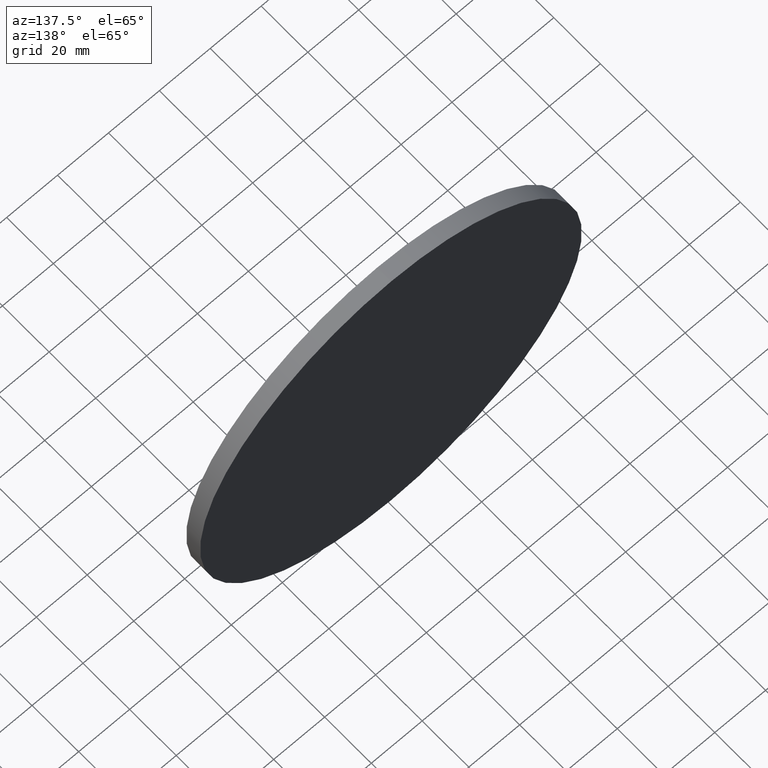
[diagram: clean part render]
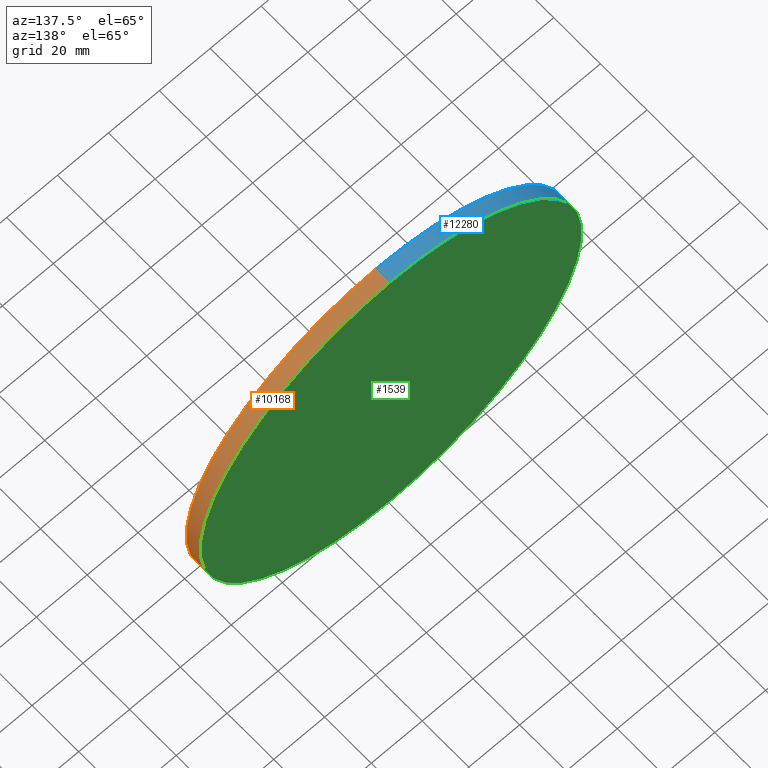
[diagram: same view with three faces highlighted in distinct colors, each labeled with its STEP entity id]
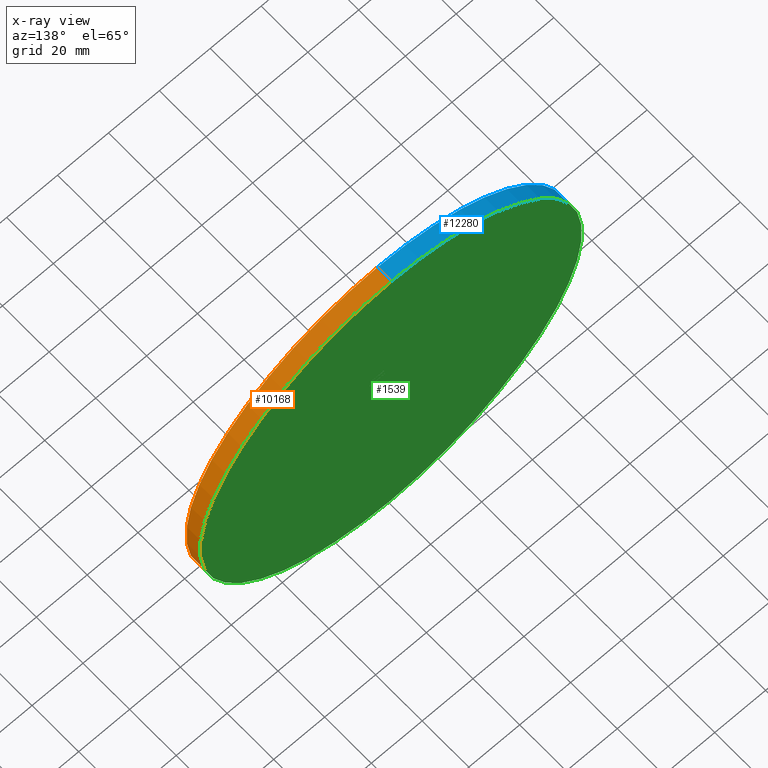
[diagram: x-ray of the same camera — body ghosted, the three highlighted faces saturated]
A machine part, auxiliary view with three faces highlighted in distinct colors.
The next image is the same camera in x-ray (body ghosted, the three faces saturated) — at least one of them is partly hidden behind the body in this view.
Their STEP definitions:

[orange] entity #10168 — the highlighted cylindrical surface (partial cylindrical patch) has radius 75 mm, axis along (-0, -1, -0).
#796 = FACE_OUTER_BOUND ( 'NONE', #11775, .T. ) ;
#977 = CARTESIAN_POINT ( 'NONE',  ( 0.000000000000000000, 3.000000000000000000, 0.000000000000000000 ) ) ;
#1593 = VERTEX_POINT ( 'NONE', #13037 ) ;
#1822 = AXIS2_PLACEMENT_3D ( 'NONE', #977, #4089, #2039 ) ;
#1942 = ORIENTED_EDGE ( 'NONE', *, *, #3453, .T. ) ;
#2039 = DIRECTION ( 'NONE',  ( 0.000000000000000000, 0.000000000000000000, -1.000000000000000000 ) ) ;
#2527 = AXIS2_PLACEMENT_3D ( 'NONE', #6704, #3473, #5694 ) ;
#2767 = ORIENTED_EDGE ( 'NONE', *, *, #10738, .F. ) ;
#3254 = EDGE_CURVE ( 'NONE', #1593, #10068, #4566, .T. ) ;
#3453 = EDGE_CURVE ( 'NONE', #10068, #11140, #4730, .T. ) ;
#3473 = DIRECTION ( 'NONE',  ( 0.000000000000000000, 1.000000000000000000, 0.000000000000000000 ) ) ;
#3571 = DIRECTION ( 'NONE',  ( 0.000000000000000000, 0.000000000000000000, 1.000000000000000000 ) ) ;
#4089 = DIRECTION ( 'NONE',  ( -0.000000000000000000, -1.000000000000000000, -0.000000000000000000 ) ) ;
#4553 = CARTESIAN_POINT ( 'NONE',  ( 0.000000000000000000, 3.000000000000000000, -75.00000000000001421 ) ) ;
#4566 = LINE ( 'NONE', #13446, #12694 ) ;
#4730 = CIRCLE ( 'NONE', #6337, 75.00000000000001421 ) ;
#5377 = EDGE_CURVE ( 'NONE', #7093, #11140, #11685, .T. ) ;
#5694 = DIRECTION ( 'NONE',  ( 0.000000000000000000, 0.000000000000000000, 1.000000000000000000 ) ) ;
#6337 = AXIS2_PLACEMENT_3D ( 'NONE', #9691, #7803, #3571 ) ;
#6704 = CARTESIAN_POINT ( 'NONE',  ( 0.000000000000000000, 3.000000000000000000, 0.000000000000000000 ) ) ;
#7093 = VERTEX_POINT ( 'NONE', #4553 ) ;
#7124 = CYLINDRICAL_SURFACE ( 'NONE', #1822, 75.00000000000001421 ) ;
#7454 = CIRCLE ( 'NONE', #2527, 75.00000000000001421 ) ;
#7803 = DIRECTION ( 'NONE',  ( 0.000000000000000000, 1.000000000000000000, 0.000000000000000000 ) ) ;
#8138 = DIRECTION ( 'NONE',  ( -0.000000000000000000, -1.000000000000000000, -0.000000000000000000 ) ) ;
#8172 = VECTOR ( 'NONE', #9604, 1000.000000000000000 ) ;
#9604 = DIRECTION ( 'NONE',  ( -0.000000000000000000, -1.000000000000000000, -0.000000000000000000 ) ) ;
#9691 = CARTESIAN_POINT ( 'NONE',  ( 0.000000000000000000, -3.000000000000000000, 0.000000000000000000 ) ) ;
#10068 = VERTEX_POINT ( 'NONE', #11153 ) ;
#10168 = ADVANCED_FACE ( 'NONE', ( #796 ), #7124, .T. ) ;
#10318 = CARTESIAN_POINT ( 'NONE',  ( 0.000000000000000000, -3.000000000000000000, -75.00000000000001421 ) ) ;
#10738 = EDGE_CURVE ( 'NONE', #1593, #7093, #7454, .T. ) ;
#10745 = ORIENTED_EDGE ( 'NONE', *, *, #5377, .F. ) ;
#11140 = VERTEX_POINT ( 'NONE', #10318 ) ;
#11153 = CARTESIAN_POINT ( 'NONE',  ( 9.184850993605150311E-15, -3.000000000000000000, 75.00000000000001421 ) ) ;
#11685 = LINE ( 'NONE', #12857, #8172 ) ;
#11775 = EDGE_LOOP ( 'NONE', ( #2767, #13581, #1942, #10745 ) ) ;
#12694 = VECTOR ( 'NONE', #8138, 1000.000000000000000 ) ;
#12857 = CARTESIAN_POINT ( 'NONE',  ( 0.000000000000000000, 3.000000000000000000, -75.00000000000001421 ) ) ;
#13037 = CARTESIAN_POINT ( 'NONE',  ( 9.184850993605150311E-15, 3.000000000000000000, 75.00000000000001421 ) ) ;
#13446 = CARTESIAN_POINT ( 'NONE',  ( 9.184850993605150311E-15, 3.000000000000000000, 75.00000000000001421 ) ) ;
#13581 = ORIENTED_EDGE ( 'NONE', *, *, #3254, .T. ) ;

[blue] entity #12280 — the highlighted cylindrical surface (partial cylindrical patch) has radius 75 mm, axis along (-0, -1, -0).
#546 = DIRECTION ( 'NONE',  ( 0.000000000000000000, 1.000000000000000000, 0.000000000000000000 ) ) ;
#892 = DIRECTION ( 'NONE',  ( 0.000000000000000000, 0.000000000000000000, 1.000000000000000000 ) ) ;
#1361 = CYLINDRICAL_SURFACE ( 'NONE', #3176, 75.00000000000001421 ) ;
#1593 = VERTEX_POINT ( 'NONE', #13037 ) ;
#2397 = ORIENTED_EDGE ( 'NONE', *, *, #11119, .F. ) ;
#2560 = CARTESIAN_POINT ( 'NONE',  ( 0.000000000000000000, -3.000000000000000000, 0.000000000000000000 ) ) ;
#2973 = CARTESIAN_POINT ( 'NONE',  ( 0.000000000000000000, 3.000000000000000000, 0.000000000000000000 ) ) ;
#3176 = AXIS2_PLACEMENT_3D ( 'NONE', #13746, #7387, #5434 ) ;
#3254 = EDGE_CURVE ( 'NONE', #1593, #10068, #4566, .T. ) ;
#3386 = FACE_OUTER_BOUND ( 'NONE', #9768, .T. ) ;
#4553 = CARTESIAN_POINT ( 'NONE',  ( 0.000000000000000000, 3.000000000000000000, -75.00000000000001421 ) ) ;
#4566 = LINE ( 'NONE', #13446, #12694 ) ;
#5377 = EDGE_CURVE ( 'NONE', #7093, #11140, #11685, .T. ) ;
#5434 = DIRECTION ( 'NONE',  ( 0.000000000000000000, 0.000000000000000000, -1.000000000000000000 ) ) ;
#6107 = ORIENTED_EDGE ( 'NONE', *, *, #10834, .T. ) ;
#6823 = AXIS2_PLACEMENT_3D ( 'NONE', #2973, #13556, #892 ) ;
#7093 = VERTEX_POINT ( 'NONE', #4553 ) ;
#7387 = DIRECTION ( 'NONE',  ( -0.000000000000000000, -1.000000000000000000, -0.000000000000000000 ) ) ;
#8138 = DIRECTION ( 'NONE',  ( -0.000000000000000000, -1.000000000000000000, -0.000000000000000000 ) ) ;
#8172 = VECTOR ( 'NONE', #9604, 1000.000000000000000 ) ;
#8784 = CIRCLE ( 'NONE', #10206, 75.00000000000001421 ) ;
#8934 = DIRECTION ( 'NONE',  ( 0.000000000000000000, 0.000000000000000000, 1.000000000000000000 ) ) ;
#9604 = DIRECTION ( 'NONE',  ( -0.000000000000000000, -1.000000000000000000, -0.000000000000000000 ) ) ;
#9768 = EDGE_LOOP ( 'NONE', ( #11950, #2397, #12417, #6107 ) ) ;
#10068 = VERTEX_POINT ( 'NONE', #11153 ) ;
#10206 = AXIS2_PLACEMENT_3D ( 'NONE', #2560, #546, #8934 ) ;
#10318 = CARTESIAN_POINT ( 'NONE',  ( 0.000000000000000000, -3.000000000000000000, -75.00000000000001421 ) ) ;
#10834 = EDGE_CURVE ( 'NONE', #11140, #10068, #8784, .T. ) ;
#11119 = EDGE_CURVE ( 'NONE', #7093, #1593, #11289, .T. ) ;
#11140 = VERTEX_POINT ( 'NONE', #10318 ) ;
#11153 = CARTESIAN_POINT ( 'NONE',  ( 9.184850993605150311E-15, -3.000000000000000000, 75.00000000000001421 ) ) ;
#11289 = CIRCLE ( 'NONE', #6823, 75.00000000000001421 ) ;
#11685 = LINE ( 'NONE', #12857, #8172 ) ;
#11950 = ORIENTED_EDGE ( 'NONE', *, *, #3254, .F. ) ;
#12280 = ADVANCED_FACE ( 'NONE', ( #3386 ), #1361, .T. ) ;
#12417 = ORIENTED_EDGE ( 'NONE', *, *, #5377, .T. ) ;
#12694 = VECTOR ( 'NONE', #8138, 1000.000000000000000 ) ;
#12857 = CARTESIAN_POINT ( 'NONE',  ( 0.000000000000000000, 3.000000000000000000, -75.00000000000001421 ) ) ;
#13037 = CARTESIAN_POINT ( 'NONE',  ( 9.184850993605150311E-15, 3.000000000000000000, 75.00000000000001421 ) ) ;
#13446 = CARTESIAN_POINT ( 'NONE',  ( 9.184850993605150311E-15, 3.000000000000000000, 75.00000000000001421 ) ) ;
#13556 = DIRECTION ( 'NONE',  ( 0.000000000000000000, 1.000000000000000000, 0.000000000000000000 ) ) ;
#13746 = CARTESIAN_POINT ( 'NONE',  ( 0.000000000000000000, 3.000000000000000000, 0.000000000000000000 ) ) ;

[green] entity #1539 — the highlighted planar face has unit normal (0, 1, 0).
#892 = DIRECTION ( 'NONE',  ( 0.000000000000000000, 0.000000000000000000, 1.000000000000000000 ) ) ;
#1398 = EDGE_LOOP ( 'NONE', ( #8928, #10565 ) ) ;
#1539 = ADVANCED_FACE ( 'NONE', ( #5068 ), #9596, .T. ) ;
#1593 = VERTEX_POINT ( 'NONE', #13037 ) ;
#2527 = AXIS2_PLACEMENT_3D ( 'NONE', #6704, #3473, #5694 ) ;
#2973 = CARTESIAN_POINT ( 'NONE',  ( 0.000000000000000000, 3.000000000000000000, 0.000000000000000000 ) ) ;
#3473 = DIRECTION ( 'NONE',  ( 0.000000000000000000, 1.000000000000000000, 0.000000000000000000 ) ) ;
#4553 = CARTESIAN_POINT ( 'NONE',  ( 0.000000000000000000, 3.000000000000000000, -75.00000000000001421 ) ) ;
#5068 = FACE_OUTER_BOUND ( 'NONE', #1398, .T. ) ;
#5694 = DIRECTION ( 'NONE',  ( 0.000000000000000000, 0.000000000000000000, 1.000000000000000000 ) ) ;
#6704 = CARTESIAN_POINT ( 'NONE',  ( 0.000000000000000000, 3.000000000000000000, 0.000000000000000000 ) ) ;
#6823 = AXIS2_PLACEMENT_3D ( 'NONE', #2973, #13556, #892 ) ;
#7093 = VERTEX_POINT ( 'NONE', #4553 ) ;
#7368 = AXIS2_PLACEMENT_3D ( 'NONE', #8568, #10769, #13733 ) ;
#7454 = CIRCLE ( 'NONE', #2527, 75.00000000000001421 ) ;
#8568 = CARTESIAN_POINT ( 'NONE',  ( 0.000000000000000000, 3.000000000000000000, 0.000000000000000000 ) ) ;
#8928 = ORIENTED_EDGE ( 'NONE', *, *, #11119, .T. ) ;
#9596 = PLANE ( 'NONE',  #7368 ) ;
#10565 = ORIENTED_EDGE ( 'NONE', *, *, #10738, .T. ) ;
#10738 = EDGE_CURVE ( 'NONE', #1593, #7093, #7454, .T. ) ;
#10769 = DIRECTION ( 'NONE',  ( 0.000000000000000000, 1.000000000000000000, 0.000000000000000000 ) ) ;
#11119 = EDGE_CURVE ( 'NONE', #7093, #1593, #11289, .T. ) ;
#11289 = CIRCLE ( 'NONE', #6823, 75.00000000000001421 ) ;
#13037 = CARTESIAN_POINT ( 'NONE',  ( 9.184850993605150311E-15, 3.000000000000000000, 75.00000000000001421 ) ) ;
#13556 = DIRECTION ( 'NONE',  ( 0.000000000000000000, 1.000000000000000000, 0.000000000000000000 ) ) ;
#13733 = DIRECTION ( 'NONE',  ( 0.000000000000000000, -0.000000000000000000, 1.000000000000000000 ) ) ;